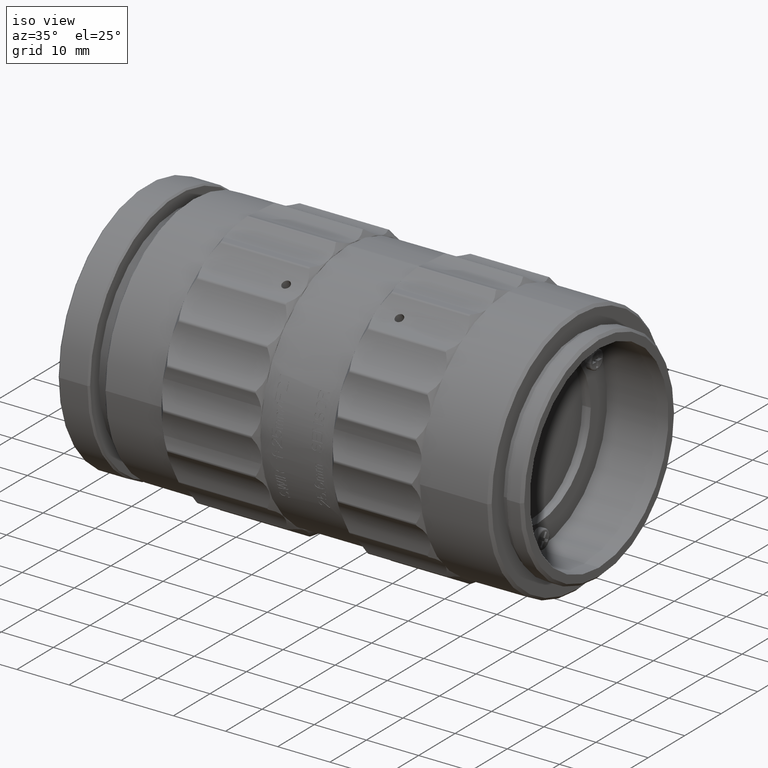
[diagram: clean part render]
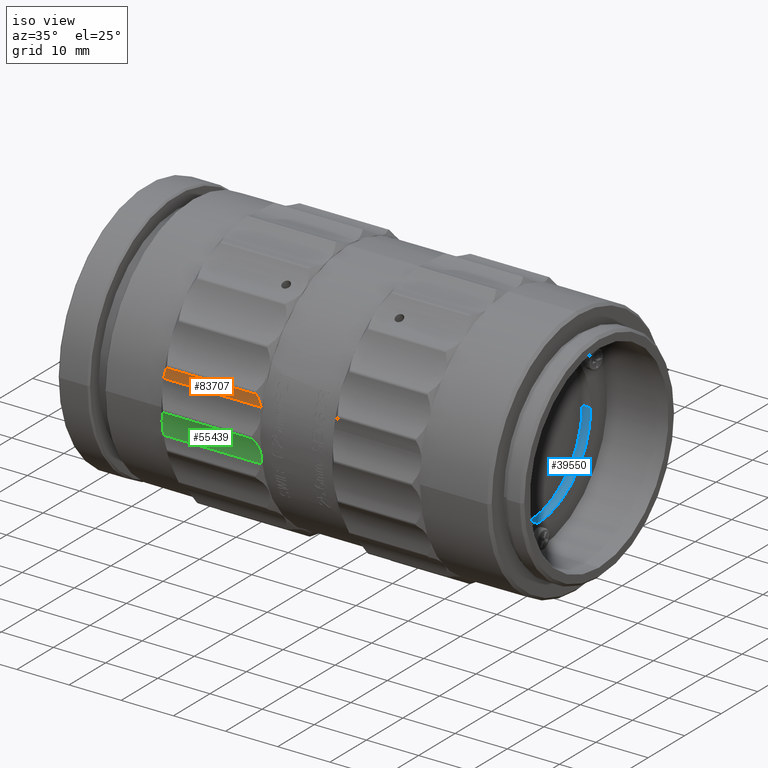
[diagram: same view with three faces highlighted in distinct colors, each labeled with its STEP entity id]
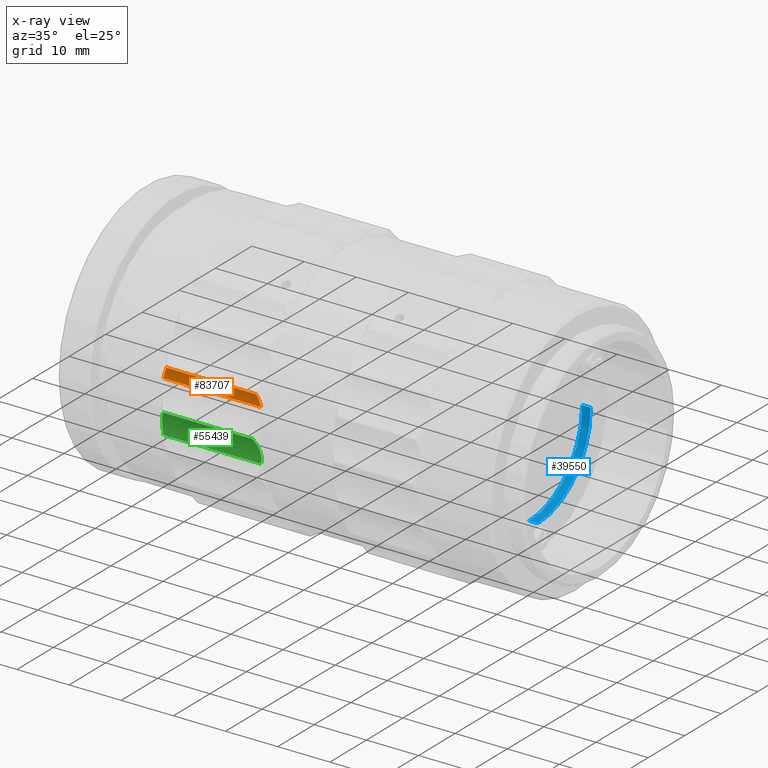
[diagram: x-ray of the same camera — body ghosted, the three highlighted faces saturated]
A machine part, iso view with three faces highlighted in distinct colors.
The next image is the same camera in x-ray (body ghosted, the three faces saturated) — at least one of them is partly hidden behind the body in this view.
Their STEP definitions:

[orange] entity #83707 — the highlighted cylindrical surface (partial cylindrical patch) has radius 9 mm, axis along (1, -0, 0).
#1156 = CARTESIAN_POINT ( 'NONE',  ( 33.58289692405999460, -23.89893673213000014, 7.050024735467999903 ) ) ;
#7369 = DIRECTION ( 'NONE',  ( -1.000000000000000000, 0.000000000000000000, -5.826056804776728968E-14 ) ) ;
#7573 = DIRECTION ( 'NONE',  ( 1.000000000000000000, -1.445602896646590248E-14, 5.165660313338350046E-15 ) ) ;
#8271 = LINE ( 'NONE', #1156, #77208 ) ;
#9835 = VERTEX_POINT ( 'NONE', #83383 ) ;
#10600 = VERTEX_POINT ( 'NONE', #68654 ) ;
#11915 = VERTEX_POINT ( 'NONE', #23415 ) ;
#14236 = LINE ( 'NONE', #41198, #16406 ) ;
#15089 = ORIENTED_EDGE ( 'NONE', *, *, #19308, .T. ) ;
#16406 = VECTOR ( 'NONE', #7573, 1000.000000000000000 ) ;
#17502 = CARTESIAN_POINT ( 'NONE',  ( 34.34872773993789963, -23.64385776941774964, 4.920236931251700696 ) ) ;
#19308 = EDGE_CURVE ( 'NONE', #9835, #48935, #55776, .T. ) ;
#22928 = CARTESIAN_POINT ( 'NONE',  ( 15.80163672581254275, -23.64651914762089646, 5.649885130233072594 ) ) ;
#23415 = CARTESIAN_POINT ( 'NONE',  ( 16.41710307593850260, -23.89893673212730363, 7.050024735468610082 ) ) ;
#26684 = CARTESIAN_POINT ( 'NONE',  ( 33.58289692406130200, -23.89893673212720060, 7.050024735469589743 ) ) ;
#27206 = EDGE_CURVE ( 'NONE', #10600, #11915, #72942, .T. ) ;
#28624 = ORIENTED_EDGE ( 'NONE', *, *, #82589, .T. ) ;
#33686 = ORIENTED_EDGE ( 'NONE', *, *, #27206, .F. ) ;
#34477 = CARTESIAN_POINT ( 'NONE',  ( 15.39814800788060190, -32.64328968992989388, 4.920167615988959575 ) ) ;
#41198 = CARTESIAN_POINT ( 'NONE',  ( 15.39814800788075111, -23.64328968992519719, 4.920167615988959575 ) ) ;
#42404 = CARTESIAN_POINT ( 'NONE',  ( 15.65127750293105180, -23.64386404324540081, 4.920232526699209075 ) ) ;
#48651 = DIRECTION ( 'NONE',  ( 1.445602896646585831E-14, 1.000000000000000000, 0.000000000000000000 ) ) ;
#48935 = VERTEX_POINT ( 'NONE', #26684 ) ;
#54586 = AXIS2_PLACEMENT_3D ( 'NONE', #34477, #75625, #48651 ) ;
#55776 = B_SPLINE_CURVE_WITH_KNOTS ( 'NONE', 3,
 ( #17502, #85598, #86022, #84306 ),
 .UNSPECIFIED., .F., .F.,
 ( 4, 4 ),
 ( 0.000000000000000000, 1.000000000000000000 ),
 .UNSPECIFIED. ) ;
#56984 = CARTESIAN_POINT ( 'NONE',  ( 16.41710307593850260, -23.89893673212730363, 7.050024735468610082 ) ) ;
#59364 = ORIENTED_EDGE ( 'NONE', *, *, #83308, .T. ) ;
#63065 = EDGE_LOOP ( 'NONE', ( #33686, #28624, #15089, #59364 ) ) ;
#68654 = CARTESIAN_POINT ( 'NONE',  ( 15.65127750293105180, -23.64386404324540081, 4.920232526699209075 ) ) ;
#68997 = FACE_OUTER_BOUND ( 'NONE', #63065, .T. ) ;
#72942 = B_SPLINE_CURVE_WITH_KNOTS ( 'NONE', 3,
 ( #42404, #22928, #82210, #56984 ),
 .UNSPECIFIED., .F., .F.,
 ( 4, 4 ),
 ( 0.000000000000000000, 1.000000000000000000 ),
 .UNSPECIFIED. ) ;
#74331 = CYLINDRICAL_SURFACE ( 'NONE', #54586, 9.000000000004691358 ) ;
#75625 = DIRECTION ( 'NONE',  ( 1.000000000000000000, -1.445602896646586146E-14, 5.165660313338350046E-15 ) ) ;
#77208 = VECTOR ( 'NONE', #7369, 1000.000000000000000 ) ;
#82210 = CARTESIAN_POINT ( 'NONE',  ( 16.05706101478829950, -23.72916759150199084, 6.353019631527144107 ) ) ;
#82589 = EDGE_CURVE ( 'NONE', #10600, #9835, #14236, .T. ) ;
#83308 = EDGE_CURVE ( 'NONE', #48935, #11915, #8271, .T. ) ;
#83383 = CARTESIAN_POINT ( 'NONE',  ( 34.34872773993789963, -23.64385776941774964, 4.920236931251700696 ) ) ;
#83707 = ADVANCED_FACE ( 'NONE', ( #68997 ), #74331, .F. ) ;
#84306 = CARTESIAN_POINT ( 'NONE',  ( 33.58289692406130200, -23.89893673212720060, 7.050024735469589743 ) ) ;
#85598 = CARTESIAN_POINT ( 'NONE',  ( 34.20419845929191638, -23.64329511372020320, 5.624391649264292248 ) ) ;
#86022 = CARTESIAN_POINT ( 'NONE',  ( 33.94892152066638857, -23.72634667209541703, 6.341438047611445583 ) ) ;

[blue] entity #39550 — the highlighted cylindrical surface (partial cylindrical patch) has radius 14.5 mm, axis along (1, -0, 0).
#20 = CARTESIAN_POINT ( 'NONE',  ( 69.21599999999999397, 14.50000000000000000, 9.331943547417400154E-32 ) ) ;
#2061 = DIRECTION ( 'NONE',  ( 1.000000000000000000, 0.000000000000000000, 0.000000000000000000 ) ) ;
#3004 = AXIS2_PLACEMENT_3D ( 'NONE', #29574, #81027, #70289 ) ;
#3507 = AXIS2_PLACEMENT_3D ( 'NONE', #75897, #55983, #34296 ) ;
#3716 = EDGE_LOOP ( 'NONE', ( #42787, #21126, #82287, #87068 ) ) ;
#14213 = VERTEX_POINT ( 'NONE', #33267 ) ;
#15452 = CYLINDRICAL_SURFACE ( 'NONE', #3004, 14.50000000000000000 ) ;
#18232 = VERTEX_POINT ( 'NONE', #20 ) ;
#21126 = ORIENTED_EDGE ( 'NONE', *, *, #70818, .T. ) ;
#23639 = AXIS2_PLACEMENT_3D ( 'NONE', #70584, #69706, #30727 ) ;
#23807 = CARTESIAN_POINT ( 'NONE',  ( 69.21599999999999397, 0.000000000000000000, -14.50000000000000000 ) ) ;
#29574 = CARTESIAN_POINT ( 'NONE',  ( 69.21599999999999397, 8.878689293818310074E-16, 0.000000000000000000 ) ) ;
#30727 = DIRECTION ( 'NONE',  ( 0.000000000000000000, 0.000000000000000000, -1.000000000000000000 ) ) ;
#33267 = CARTESIAN_POINT ( 'NONE',  ( 70.84600000000000364, 14.50000000000000000, 9.331943547417400154E-32 ) ) ;
#33528 = CIRCLE ( 'NONE', #23639, 14.50000000000000000 ) ;
#34296 = DIRECTION ( 'NONE',  ( 0.000000000000000000, 0.000000000000000000, 1.000000000000000000 ) ) ;
#36092 = LINE ( 'NONE', #84279, #40462 ) ;
#37446 = LINE ( 'NONE', #50314, #74225 ) ;
#39550 = ADVANCED_FACE ( 'NONE', ( #76924 ), #15452, .F. ) ;
#40462 = VECTOR ( 'NONE', #62187, 1000.000000000000000 ) ;
#42787 = ORIENTED_EDGE ( 'NONE', *, *, #74132, .F. ) ;
#48760 = CIRCLE ( 'NONE', #3507, 14.50000000000000000 ) ;
#50314 = CARTESIAN_POINT ( 'NONE',  ( 69.21599999999999397, 0.000000000000000000, -14.50000000000000000 ) ) ;
#52478 = VERTEX_POINT ( 'NONE', #82924 ) ;
#55983 = DIRECTION ( 'NONE',  ( -1.000000000000000000, 0.000000000000000000, 0.000000000000000000 ) ) ;
#62187 = DIRECTION ( 'NONE',  ( 1.000000000000000000, -9.570888143320309971E-16, 1.145023748149370003E-31 ) ) ;
#69706 = DIRECTION ( 'NONE',  ( 1.000000000000000000, 0.000000000000000000, 0.000000000000000000 ) ) ;
#70289 = DIRECTION ( 'NONE',  ( 9.570888143320315888E-16, 1.000000000000000000, 0.000000000000000000 ) ) ;
#70584 = CARTESIAN_POINT ( 'NONE',  ( 70.84600000000000364, 0.000000000000000000, 0.000000000000000000 ) ) ;
#70818 = EDGE_CURVE ( 'NONE', #18232, #78364, #48760, .T. ) ;
#74132 = EDGE_CURVE ( 'NONE', #18232, #14213, #36092, .T. ) ;
#74225 = VECTOR ( 'NONE', #2061, 1000.000000000000000 ) ;
#75897 = CARTESIAN_POINT ( 'NONE',  ( 69.21599999999999397, 0.000000000000000000, 0.000000000000000000 ) ) ;
#76924 = FACE_OUTER_BOUND ( 'NONE', #3716, .T. ) ;
#78364 = VERTEX_POINT ( 'NONE', #23807 ) ;
#80175 = EDGE_CURVE ( 'NONE', #78364, #52478, #37446, .T. ) ;
#81027 = DIRECTION ( 'NONE',  ( 1.000000000000000000, -9.570888143320319832E-16, 1.145023748149370003E-31 ) ) ;
#82287 = ORIENTED_EDGE ( 'NONE', *, *, #80175, .T. ) ;
#82924 = CARTESIAN_POINT ( 'NONE',  ( 70.84600000000000364, 0.000000000000000000, -14.50000000000000000 ) ) ;
#84279 = CARTESIAN_POINT ( 'NONE',  ( 69.21599999999999397, 14.50000000000000000, 0.000000000000000000 ) ) ;
#84828 = EDGE_CURVE ( 'NONE', #52478, #14213, #33528, .T. ) ;
#87068 = ORIENTED_EDGE ( 'NONE', *, *, #84828, .T. ) ;

[green] entity #55439 — the highlighted cylindrical surface (partial cylindrical patch) has radius 9 mm, axis along (1, 0, -0).
#355 = B_SPLINE_CURVE_WITH_KNOTS ( 'NONE', 3,
 ( #38903, #17258, #11473, #38443, #23869, #4806 ),
 .UNSPECIFIED., .F., .F.,
 ( 4, 1, 1, 4 ),
 ( 0.000000000000000000, 0.1428571428570999946, 0.2857142857143000203, 0.3987007858461070198 ),
 .UNSPECIFIED. ) ;
#965 = B_SPLINE_CURVE_WITH_KNOTS ( 'NONE', 3,
 ( #69784, #2517, #22885, #49453 ),
 .UNSPECIFIED., .F., .F.,
 ( 4, 4 ),
 ( 0.000000000000000000, 1.000000000000000000 ),
 .UNSPECIFIED. ) ;
#1705 = CARTESIAN_POINT ( 'NONE',  ( 15.51200404374909958, -23.74380783625999669, -3.578816522570249958 ) ) ;
#2158 = CARTESIAN_POINT ( 'NONE',  ( 15.72347604557175060, -24.14366426077504357, -1.965353870918630674 ) ) ;
#2239 = DIRECTION ( 'NONE',  ( 1.000000000000000000, 1.522701717802649956E-14, -6.840610626956909720E-16 ) ) ;
#2285 = CARTESIAN_POINT ( 'NONE',  ( 34.48800960113000258, -23.74380212072999896, -3.578815661104000068 ) ) ;
#2517 = CARTESIAN_POINT ( 'NONE',  ( 34.48799595363281867, -23.91205280695069391, -2.462588237790693135 ) ) ;
#4806 = CARTESIAN_POINT ( 'NONE',  ( 34.35018647467055075, -23.64328762741600087, -4.920201799960010725 ) ) ;
#5714 = ORIENTED_EDGE ( 'NONE', *, *, #53207, .T. ) ;
#8800 = CARTESIAN_POINT ( 'NONE',  ( 15.51200404374909958, -23.74380783625999669, -3.578816522570249958 ) ) ;
#8822 = CARTESIAN_POINT ( 'NONE',  ( 15.69092955941595768, -24.10062843382925735, -2.090500026062245720 ) ) ;
#9555 = CARTESIAN_POINT ( 'NONE',  ( 34.35018647467055075, -23.64328762741600087, -4.920201799960010725 ) ) ;
#10513 = ORIENTED_EDGE ( 'NONE', *, *, #84510, .F. ) ;
#10980 = VERTEX_POINT ( 'NONE', #47241 ) ;
#11336 = CARTESIAN_POINT ( 'NONE',  ( 15.55969093733398800, -23.64328104339647751, -4.466610391611992803 ) ) ;
#11473 = CARTESIAN_POINT ( 'NONE',  ( 34.47629953082000043, -23.68076765237000103, -4.054107773126999881 ) ) ;
#12267 = CARTESIAN_POINT ( 'NONE',  ( 16.41710307594380325, -24.91520528358989850, -0.3075245898248329945 ) ) ;
#13108 = CARTESIAN_POINT ( 'NONE',  ( 16.13219649580429049, -24.62426049343304868, -0.7949734812182788213 ) ) ;
#13865 = VECTOR ( 'NONE', #2239, 1000.000000000000000 ) ;
#17258 = CARTESIAN_POINT ( 'NONE',  ( 34.48800960113000258, -23.72003395872000198, -3.736506525637000031 ) ) ;
#19279 = DIRECTION ( 'NONE',  ( 1.000000000000000000, 1.522701717802645223E-14, -6.840610626956909720E-16 ) ) ;
#20786 = CARTESIAN_POINT ( 'NONE',  ( 15.91258450919069389, -24.38399076301658397, -1.303169526327703664 ) ) ;
#21336 = EDGE_CURVE ( 'NONE', #59439, #10980, #60877, .T. ) ;
#22100 = CARTESIAN_POINT ( 'NONE',  ( 15.59409173796521486, -23.95848214272493948, -2.556996087960940578 ) ) ;
#22532 = CARTESIAN_POINT ( 'NONE',  ( 15.74808631955360383, -24.17541217731076486, -1.876025420503353081 ) ) ;
#22885 = CARTESIAN_POINT ( 'NONE',  ( 34.18629172794417315, -24.29902234453667731, -1.339877466687657170 ) ) ;
#23752 = CARTESIAN_POINT ( 'NONE',  ( 15.65127419325095381, -23.64385262446414870, -4.920271119539149751 ) ) ;
#23869 = CARTESIAN_POINT ( 'NONE',  ( 34.37644028732815116, -23.64329051615510124, -4.791320113553170223 ) ) ;
#25296 = VERTEX_POINT ( 'NONE', #54989 ) ;
#25991 = EDGE_CURVE ( 'NONE', #62834, #74122, #355, .T. ) ;
#32566 = ORIENTED_EDGE ( 'NONE', *, *, #42815, .T. ) ;
#36746 = LINE ( 'NONE', #64642, #13865 ) ;
#38443 = CARTESIAN_POINT ( 'NONE',  ( 34.42723802345239648, -23.64955696091629989, -4.500886646531680135 ) ) ;
#38903 = CARTESIAN_POINT ( 'NONE',  ( 34.48800960113000258, -23.74380212072999896, -3.578815661104000068 ) ) ;
#42439 = CARTESIAN_POINT ( 'NONE',  ( 15.63257034270020007, -24.01952510433314458, -2.341181969279286346 ) ) ;
#42815 = EDGE_CURVE ( 'NONE', #62834, #25296, #965, .T. ) ;
#44134 = DIRECTION ( 'NONE',  ( 1.000000000000000000, 0.000000000000000000, 0.000000000000000000 ) ) ;
#46388 = B_SPLINE_CURVE_WITH_KNOTS ( 'NONE', 3,
 ( #58237, #72379, #11336, #23752 ),
 .UNSPECIFIED., .F., .F.,
 ( 4, 4 ),
 ( 0.000000000000000000, 1.000000000000000000 ),
 .UNSPECIFIED. ) ;
#47241 = CARTESIAN_POINT ( 'NONE',  ( 16.41710307594380325, -24.91520528358989850, -0.3075245898248329945 ) ) ;
#47589 = CARTESIAN_POINT ( 'NONE',  ( 15.39814800788080085, -32.64328453752000314, -4.920201799960000066 ) ) ;
#48663 = EDGE_CURVE ( 'NONE', #59439, #49173, #46388, .T. ) ;
#48966 = ORIENTED_EDGE ( 'NONE', *, *, #48663, .T. ) ;
#49173 = VERTEX_POINT ( 'NONE', #55428 ) ;
#49453 = CARTESIAN_POINT ( 'NONE',  ( 33.58289692406409443, -24.91520528359080089, -0.3075245898233310293 ) ) ;
#53207 = EDGE_CURVE ( 'NONE', #49173, #74122, #36746, .T. ) ;
#53917 = EDGE_LOOP ( 'NONE', ( #48966, #5714, #59529, #32566, #10513, #63636 ) ) ;
#54989 = CARTESIAN_POINT ( 'NONE',  ( 33.58289692406409443, -24.91520528359080089, -0.3075245898233310293 ) ) ;
#55428 = CARTESIAN_POINT ( 'NONE',  ( 15.65127419325095381, -23.64385262446414870, -4.920271119539149751 ) ) ;
#55439 = ADVANCED_FACE ( 'NONE', ( #79879 ), #59966, .F. ) ;
#56150 = CARTESIAN_POINT ( 'NONE',  ( 15.53252596985709388, -23.84755360583077177, -2.990626545962297822 ) ) ;
#58237 = CARTESIAN_POINT ( 'NONE',  ( 15.51200404374909958, -23.74380783625999669, -3.578816522570249958 ) ) ;
#59439 = VERTEX_POINT ( 'NONE', #8800 ) ;
#59529 = ORIENTED_EDGE ( 'NONE', *, *, #25991, .F. ) ;
#59966 = CYLINDRICAL_SURFACE ( 'NONE', #81121, 8.999999999995379696 ) ;
#60877 = B_SPLINE_CURVE_WITH_KNOTS ( 'NONE', 3,
 ( #1705, #82698, #56150, #22100, #42439, #8822, #2158, #83139, #22532, #81398, #20786, #13108, #12267 ),
 .UNSPECIFIED., .F., .F.,
 ( 4, 2, 1, 1, 1, 2, 2, 4 ),
 ( 0.000000000000000000, 0.2500000000000027756, 0.3750000000000038858, 0.4375000000000045519, 0.4687500000000044964, 0.4843750000000042744, 0.5000000000000039968, 1.000000000000000000 ),
 .UNSPECIFIED. ) ;
#62834 = VERTEX_POINT ( 'NONE', #2285 ) ;
#63205 = CARTESIAN_POINT ( 'NONE',  ( 16.41710307593999829, -24.91520528358999798, -0.3075245898238000430 ) ) ;
#63636 = ORIENTED_EDGE ( 'NONE', *, *, #21336, .F. ) ;
#64511 = LINE ( 'NONE', #63205, #68796 ) ;
#64642 = CARTESIAN_POINT ( 'NONE',  ( 15.39814800788064986, -23.64328453752465009, -4.920201799960000066 ) ) ;
#66603 = DIRECTION ( 'NONE',  ( -1.522701717802645854E-14, 1.000000000000000000, 0.000000000000000000 ) ) ;
#68796 = VECTOR ( 'NONE', #44134, 1000.000000000000000 ) ;
#69784 = CARTESIAN_POINT ( 'NONE',  ( 34.48800960113000258, -23.74380212072999896, -3.578815661104000068 ) ) ;
#72379 = CARTESIAN_POINT ( 'NONE',  ( 15.51200404877019956, -23.67776934384222898, -4.016951668333386571 ) ) ;
#74122 = VERTEX_POINT ( 'NONE', #9555 ) ;
#79879 = FACE_OUTER_BOUND ( 'NONE', #53917, .T. ) ;
#81121 = AXIS2_PLACEMENT_3D ( 'NONE', #47589, #19279, #66603 ) ;
#81398 = CARTESIAN_POINT ( 'NONE',  ( 15.75344469841786399, -24.18224726408051950, -1.857092579513878183 ) ) ;
#82698 = CARTESIAN_POINT ( 'NONE',  ( 15.51200404626748863, -23.78848847586693438, -3.282380958069223809 ) ) ;
#83139 = CARTESIAN_POINT ( 'NONE',  ( 15.73814601345235253, -24.16264178394314754, -1.911752952626643909 ) ) ;
#84510 = EDGE_CURVE ( 'NONE', #10980, #25296, #64511, .T. ) ;